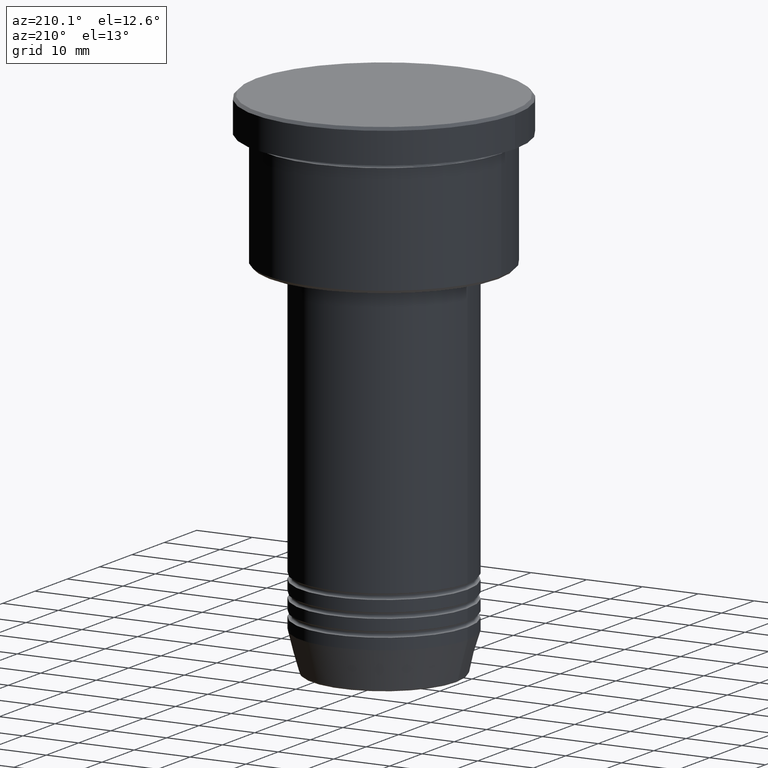
[diagram: clean part render]
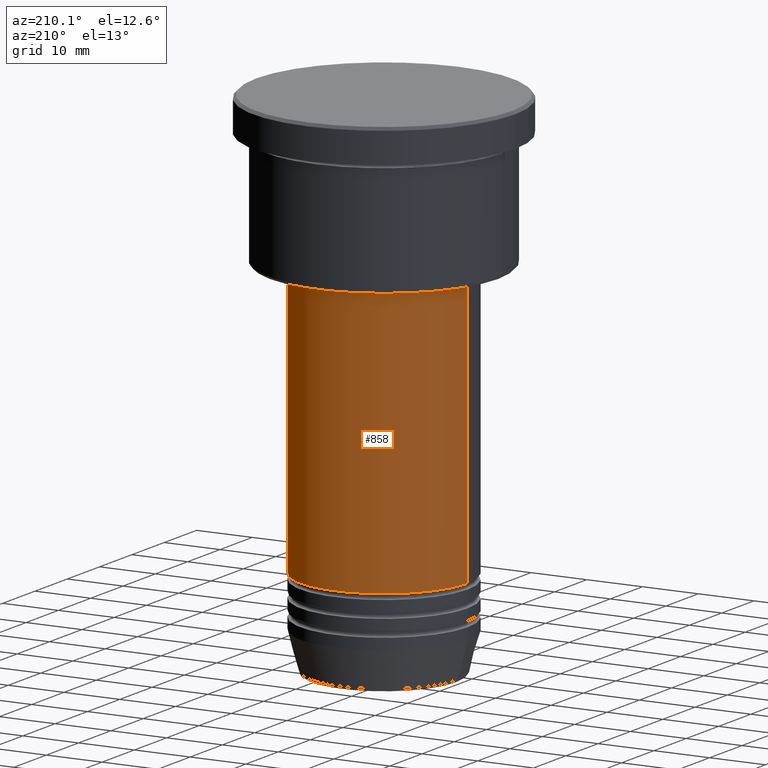
[diagram: same view with one face highlighted and labeled with its STEP entity id]
A machine part, auxiliary view. The second image highlights one B-rep face of the part: STEP entity #858.
In plain terms, the highlighted cylindrical surface (partial cylindrical patch) has radius 15 mm, axis along (-0, -0, 1).
Its self-contained STEP definition (entity closure, byte-faithful):
#11 = CARTESIAN_POINT ( 'NONE',  ( 15.00000000000000000, 0.000000000000000000, -27.99999999999996803 ) ) ;
#112 = AXIS2_PLACEMENT_3D ( 'NONE', #232, #784, #143 ) ;
#143 = DIRECTION ( 'NONE',  ( 1.000000000000000000, 0.000000000000000000, 0.000000000000000000 ) ) ;
#162 = EDGE_CURVE ( 'NONE', #611, #353, #923, .T. ) ;
#168 = VECTOR ( 'NONE', #626, 1000.000000000000000 ) ;
#170 = AXIS2_PLACEMENT_3D ( 'NONE', #388, #953, #936 ) ;
#232 = CARTESIAN_POINT ( 'NONE',  ( 0.000000000000000000, 0.000000000000000000, -27.99999999999996803 ) ) ;
#273 = CARTESIAN_POINT ( 'NONE',  ( -15.00000000000000000, 1.836970198721029589E-15, -27.99999999999996803 ) ) ;
#303 = VECTOR ( 'NONE', #779, 1000.000000000000000 ) ;
#353 = VERTEX_POINT ( 'NONE', #365 ) ;
#365 = CARTESIAN_POINT ( 'NONE',  ( -15.00000000000000000, 1.836970198721029589E-15, -75.99999999999997158 ) ) ;
#388 = CARTESIAN_POINT ( 'NONE',  ( 0.000000000000000000, 0.000000000000000000, -75.99999999999997158 ) ) ;
#403 = ORIENTED_EDGE ( 'NONE', *, *, #958, .F. ) ;
#453 = VERTEX_POINT ( 'NONE', #11 ) ;
#471 = EDGE_LOOP ( 'NONE', ( #753, #929, #403, #700 ) ) ;
#532 = CYLINDRICAL_SURFACE ( 'NONE', #726, 15.00000000000000000 ) ;
#585 = LINE ( 'NONE', #1149, #303 ) ;
#611 = VERTEX_POINT ( 'NONE', #1089 ) ;
#626 = DIRECTION ( 'NONE',  ( -0.000000000000000000, -0.000000000000000000, 1.000000000000000000 ) ) ;
#700 = ORIENTED_EDGE ( 'NONE', *, *, #988, .F. ) ;
#726 = AXIS2_PLACEMENT_3D ( 'NONE', #907, #1178, #1082 ) ;
#746 = CIRCLE ( 'NONE', #112, 15.00000000000000000 ) ;
#753 = ORIENTED_EDGE ( 'NONE', *, *, #162, .T. ) ;
#779 = DIRECTION ( 'NONE',  ( -0.000000000000000000, -0.000000000000000000, 1.000000000000000000 ) ) ;
#784 = DIRECTION ( 'NONE',  ( -0.000000000000000000, -0.000000000000000000, 1.000000000000000000 ) ) ;
#795 = FACE_OUTER_BOUND ( 'NONE', #471, .T. ) ;
#828 = EDGE_CURVE ( 'NONE', #353, #1072, #883, .T. ) ;
#858 = ADVANCED_FACE ( 'NONE', ( #795 ), #532, .T. ) ;
#883 = LINE ( 'NONE', #1159, #168 ) ;
#907 = CARTESIAN_POINT ( 'NONE',  ( 0.000000000000000000, 0.000000000000000000, 0.000000000000000000 ) ) ;
#923 = CIRCLE ( 'NONE', #170, 15.00000000000000000 ) ;
#929 = ORIENTED_EDGE ( 'NONE', *, *, #828, .T. ) ;
#936 = DIRECTION ( 'NONE',  ( 1.000000000000000000, 0.000000000000000000, 0.000000000000000000 ) ) ;
#953 = DIRECTION ( 'NONE',  ( -0.000000000000000000, -0.000000000000000000, 1.000000000000000000 ) ) ;
#958 = EDGE_CURVE ( 'NONE', #453, #1072, #746, .T. ) ;
#988 = EDGE_CURVE ( 'NONE', #611, #453, #585, .T. ) ;
#1072 = VERTEX_POINT ( 'NONE', #273 ) ;
#1082 = DIRECTION ( 'NONE',  ( 1.000000000000000000, 0.000000000000000000, 0.000000000000000000 ) ) ;
#1089 = CARTESIAN_POINT ( 'NONE',  ( 15.00000000000000000, 0.000000000000000000, -75.99999999999997158 ) ) ;
#1149 = CARTESIAN_POINT ( 'NONE',  ( 15.00000000000000000, 0.000000000000000000, 0.000000000000000000 ) ) ;
#1159 = CARTESIAN_POINT ( 'NONE',  ( -15.00000000000000000, 1.836970198721029589E-15, 0.000000000000000000 ) ) ;
#1178 = DIRECTION ( 'NONE',  ( -0.000000000000000000, -0.000000000000000000, 1.000000000000000000 ) ) ;